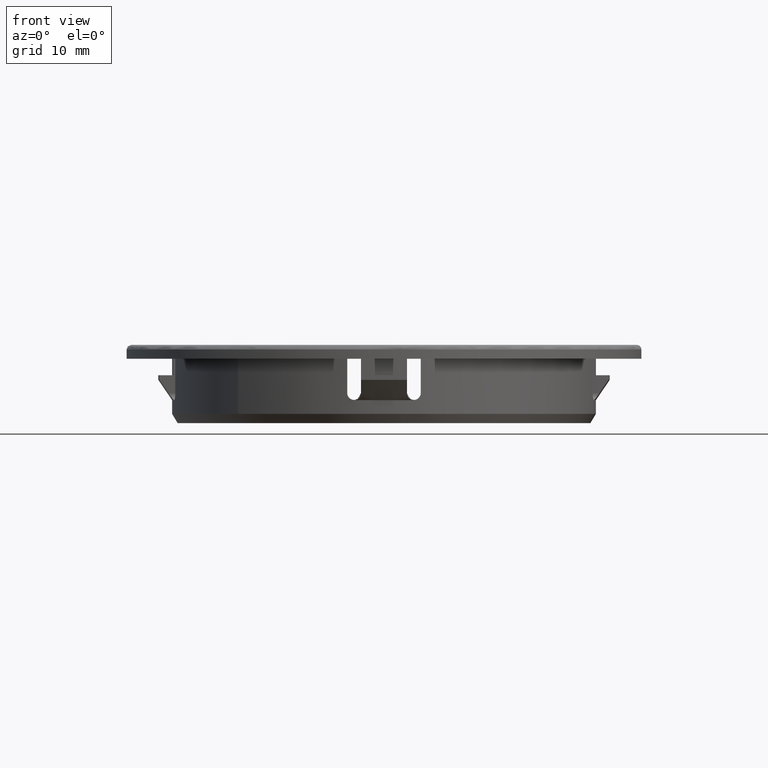
[diagram: clean part render]
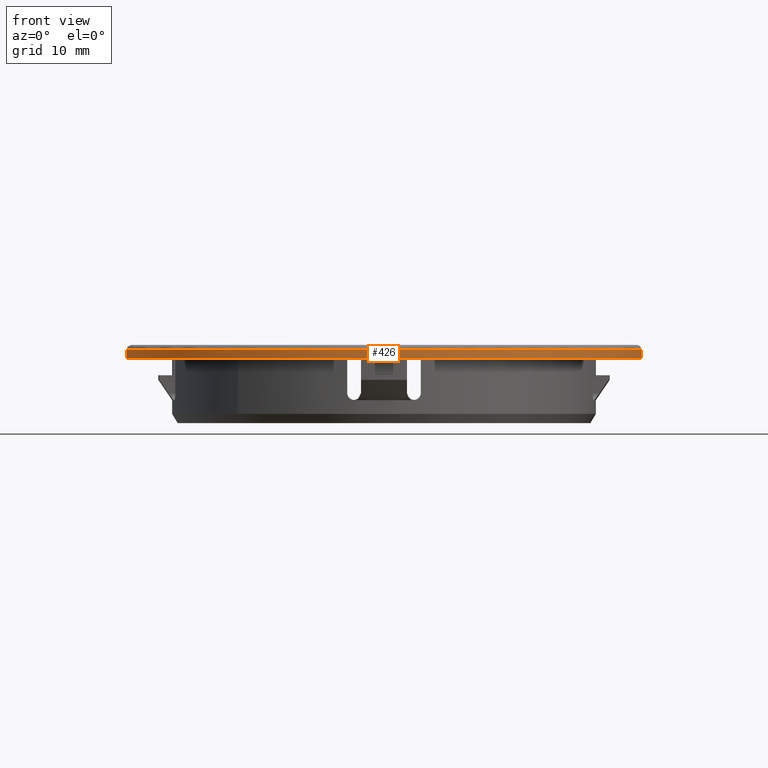
[diagram: same view with one face highlighted and labeled with its STEP entity id]
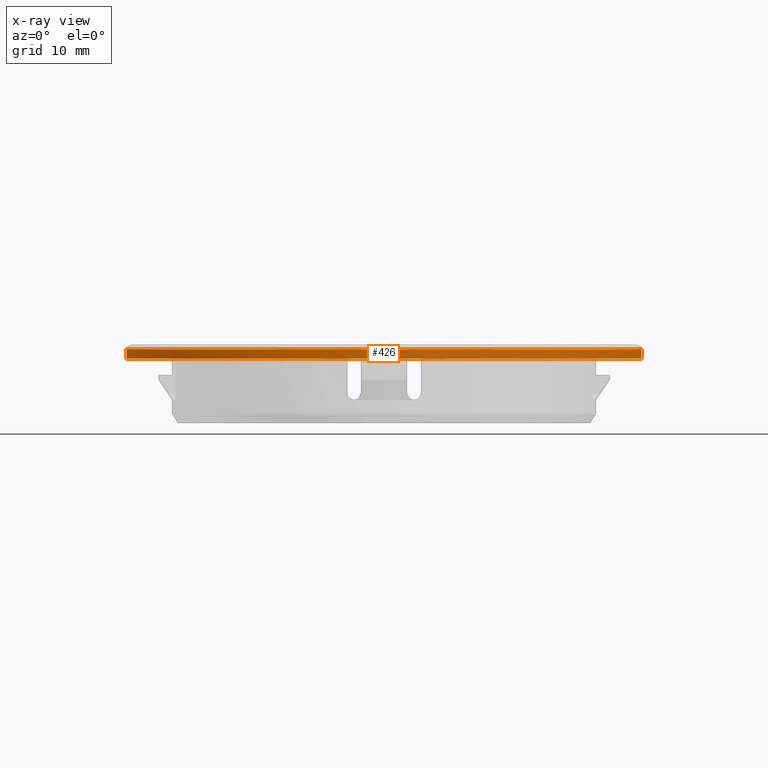
[diagram: x-ray of the same camera — body ghosted, the highlighted face saturated]
A machine part, front view. The second image highlights one B-rep face of the part: STEP entity #426.
The next image is the same camera in x-ray: the body ghosted, the highlighted face saturated — about 0% of this face is hidden behind the body in this view.
In plain terms, the highlighted face is a freeform B-spline surface patch.
Its self-contained STEP definition (entity closure, byte-faithful):
#260=CARTESIAN_POINT('',(15.983526509727337,22.989712488694661,8.025000000032868));
#261=CARTESIAN_POINT('',(26.873097911632620,15.418771648633529,8.025000000032868));
#262=CARTESIAN_POINT('',(27.913685344527579,2.196854680379640,8.025000000032868));
#263=CARTESIAN_POINT('',(30.110540024907216,-25.716830664147931,8.025000000032868));
#264=CARTESIAN_POINT('',(2.196854680379640,-27.913685344527579,8.025000000032868));
#265=CARTESIAN_POINT('',(-25.716830664147931,-30.110540024907216,8.025000000032868));
#266=CARTESIAN_POINT('',(-27.913685344527579,-2.196854680379640,8.025000000032868));
#267=CARTESIAN_POINT('',(-30.110540024907216,25.716830664147931,8.025000000032868));
#268=CARTESIAN_POINT('',(-2.196854680379640,27.913685344527579,8.025000000032868));
#269=CARTESIAN_POINT('',(15.983526509727337,22.989712488694661,6.974374999999178));
#270=CARTESIAN_POINT('',(26.873097911632620,15.418771648633529,6.974374999999178));
#271=CARTESIAN_POINT('',(27.913685344527579,2.196854680379640,6.974374999999178));
#272=CARTESIAN_POINT('',(30.110540024907216,-25.716830664147931,6.974374999999178));
#273=CARTESIAN_POINT('',(2.196854680379640,-27.913685344527579,6.974374999999178));
#274=CARTESIAN_POINT('',(-25.716830664147931,-30.110540024907216,6.974374999999178));
#275=CARTESIAN_POINT('',(-27.913685344527579,-2.196854680379640,6.974374999999178));
#276=CARTESIAN_POINT('',(-30.110540024907216,25.716830664147931,6.974374999999178));
#277=CARTESIAN_POINT('',(-2.196854680379640,27.913685344527579,6.974374999999178));
#285=(BOUNDED_SURFACE()B_SPLINE_SURFACE(2,1,((#260,#269),(#261,#270),(#262,#271),(#263,#272),(#264,#273),(#265,#274),(#266,#275),(#267,#276),(#268,#277)),.UNSPECIFIED.,.F.,.F.,.U.)B_SPLINE_SURFACE_WITH_KNOTS((3,2,2,2,3),(2,2),(0.0,25.979474632040521,72.371393617827152,118.763312603613800,165.155231589400390),(0.0,1.0),.UNSPECIFIED.)GEOMETRIC_REPRESENTATION_ITEM()RATIONAL_B_SPLINE_SURFACE(((0.855662221768731,0.855662221768731),(0.835979797464467,0.835979797464467),(1.0,1.0),(0.707106781186548,0.707106781186548),(1.0,1.0),(0.707106781186548,0.707106781186548),(1.0,1.0),(0.707106781186548,0.707106781186548),(1.0,1.0)))REPRESENTATION_ITEM('')SURFACE());
#286=CARTESIAN_POINT('',(15.983521644279421,22.989715871379481,8.000000000004722));
#287=VERTEX_POINT('',#286);
#288=CARTESIAN_POINT('',(27.997789237706669,0.351849116747990,8.000000000027695));
#289=VERTEX_POINT('',#288);
#290=CARTESIAN_POINT('',(15.983521644279415,22.989715871379481,8.000000000004722));
#291=CARTESIAN_POINT('',(27.816687008981184,14.762747961671874,8.000000000013259));
#292=CARTESIAN_POINT('',(27.997789237706669,0.351849116747990,8.000000000027695));
#300=(BOUNDED_CURVE()B_SPLINE_CURVE(2,(#290,#291,#292),.UNSPECIFIED.,.F.,.U.)B_SPLINE_CURVE_WITH_KNOTS((3,3),(0.348090576751430,0.497784295921551),.UNSPECIFIED.)CURVE()GEOMETRIC_REPRESENTATION_ITEM()RATIONAL_B_SPLINE_CURVE((0.860340237837286,0.822585864731215,0.994854295643604))REPRESENTATION_ITEM(''));
#301=EDGE_CURVE('',#287,#289,#300,.T.);
#302=ORIENTED_EDGE('',*,*,#301,.T.);
#303=CARTESIAN_POINT('',(28.0,0.0,8.0));
#304=VERTEX_POINT('',#303);
#305=CARTESIAN_POINT('',(27.997789237706666,0.351849116747990,8.000000000027695));
#306=CARTESIAN_POINT('',(28.000000000000004,0.175931503787042,8.0));
#307=CARTESIAN_POINT('',(28.0,0.0,8.0));
#315=(BOUNDED_CURVE()B_SPLINE_CURVE(2,(#305,#306,#307),.UNSPECIFIED.,.F.,.U.)B_SPLINE_CURVE_WITH_KNOTS((3,3),(0.497784295921551,0.500000000000000),.UNSPECIFIED.)CURVE()GEOMETRIC_REPRESENTATION_ITEM()RATIONAL_B_SPLINE_CURVE((0.994854295643604,0.997404141202100,1.0))REPRESENTATION_ITEM(''));
#316=EDGE_CURVE('',#289,#304,#315,.T.);
#317=ORIENTED_EDGE('',*,*,#316,.T.);
#318=CARTESIAN_POINT('',(1.952531044116802,-27.931838867531798,8.000000000032067));
#319=VERTEX_POINT('',#318);
#320=CARTESIAN_POINT('',(28.0,0.0,8.0));
#321=CARTESIAN_POINT('',(27.999999999999993,-26.111031723457124,8.0));
#322=CARTESIAN_POINT('',(1.952531044116802,-27.931838867531791,8.000000000032067));
#330=(BOUNDED_CURVE()B_SPLINE_CURVE(2,(#320,#321,#322),.UNSPECIFIED.,.F.,.U.)B_SPLINE_CURVE_WITH_KNOTS((3,3),(0.500000000000000,0.737833686535081),.UNSPECIFIED.)CURVE()GEOMETRIC_REPRESENTATION_ITEM()RATIONAL_B_SPLINE_CURVE((1.0,0.721360504033882,0.972879876386952))REPRESENTATION_ITEM(''));
#331=EDGE_CURVE('',#304,#319,#330,.T.);
#332=ORIENTED_EDGE('',*,*,#331,.T.);
#333=CARTESIAN_POINT('',(-28.0,0.0,8.0));
#334=VERTEX_POINT('',#333);
#335=CARTESIAN_POINT('',(1.952531044116802,-27.931838867531798,8.000000000032069));
#336=CARTESIAN_POINT('',(0.977455244496375,-27.999999999999993,8.0));
#337=CARTESIAN_POINT('',(0.0,-28.0,8.0));
#338=CARTESIAN_POINT('',(-28.000000000000004,-28.000000000000004,8.0));
#339=CARTESIAN_POINT('',(-28.0,0.0,8.0));
#347=(BOUNDED_CURVE()B_SPLINE_CURVE(2,(#335,#336,#337,#338,#339),.UNSPECIFIED.,.F.,.U.)B_SPLINE_CURVE_WITH_KNOTS((3,2,3),(0.737833686535080,0.750000000000000,1.0),.UNSPECIFIED.)CURVE()GEOMETRIC_REPRESENTATION_ITEM()RATIONAL_B_SPLINE_CURVE((0.972879876386951,0.985746277152665,1.0,0.707106781186547,1.0))REPRESENTATION_ITEM(''));
#348=EDGE_CURVE('',#319,#334,#347,.T.);
#349=ORIENTED_EDGE('',*,*,#348,.T.);
#350=CARTESIAN_POINT('',(-2.196838447002865,27.913686622112539,7.999999999999140));
#351=VERTEX_POINT('',#350);
#352=CARTESIAN_POINT('',(-28.0,0.0,8.0));
#353=CARTESIAN_POINT('',(-28.0,25.882948865358731,8.0));
#354=CARTESIAN_POINT('',(-2.196838447002865,27.913686622112543,7.999999999999140));
#362=(BOUNDED_CURVE()B_SPLINE_CURVE(2,(#352,#353,#354),.UNSPECIFIED.,.F.,.U.)B_SPLINE_CURVE_WITH_KNOTS((3,3),(0.0,0.236331400325748),.UNSPECIFIED.)CURVE()GEOMETRIC_REPRESENTATION_ITEM()RATIONAL_B_SPLINE_CURVE((1.0,0.723120541807604,0.969723564223555))REPRESENTATION_ITEM(''));
#363=EDGE_CURVE('',#334,#351,#362,.T.);
#364=ORIENTED_EDGE('',*,*,#363,.T.);
#365=CARTESIAN_POINT('',(-2.196838642496592,27.913686606727079,7.0));
#366=VERTEX_POINT('',#365);
#367=CARTESIAN_POINT('',(-2.196838447002865,27.913686622112539,7.999999999999140));
#368=CARTESIAN_POINT('',(-2.196838642496592,27.913686606727079,7.0));
#369=QUASI_UNIFORM_CURVE('',1,(#367,#368),.UNSPECIFIED.,.F.,.U.);
#370=EDGE_CURVE('',#351,#366,#369,.T.);
#371=ORIENTED_EDGE('',*,*,#370,.T.);
#372=CARTESIAN_POINT('',(-28.0,0.0,7.0));
#373=VERTEX_POINT('',#372);
#374=CARTESIAN_POINT('',(-28.0,0.0,7.0));
#375=CARTESIAN_POINT('',(-27.999999999999996,25.882948683526781,6.999999999999998));
#376=CARTESIAN_POINT('',(-2.196838642496591,27.913686606727079,7.0));
#384=(BOUNDED_CURVE()B_SPLINE_CURVE(2,(#374,#375,#376),.UNSPECIFIED.,.F.,.U.)B_SPLINE_CURVE_WITH_KNOTS((3,3),(0.0,0.236331399125175),.UNSPECIFIED.)CURVE()GEOMETRIC_REPRESENTATION_ITEM()RATIONAL_B_SPLINE_CURVE((1.0,0.723120543214163,0.969723561718049))REPRESENTATION_ITEM(''));
#385=EDGE_CURVE('',#373,#366,#384,.T.);
#386=ORIENTED_EDGE('',*,*,#385,.F.);
#387=CARTESIAN_POINT('',(28.0,0.0,7.0));
#388=VERTEX_POINT('',#387);
#389=CARTESIAN_POINT('',(28.0,0.0,7.0));
#390=CARTESIAN_POINT('',(28.000000000000004,-28.000000000000004,6.999999999999999));
#391=CARTESIAN_POINT('',(0.0,-28.0,7.0));
#392=CARTESIAN_POINT('',(-28.000000000000004,-28.000000000000004,6.999999999999999));
#393=CARTESIAN_POINT('',(-28.0,0.0,7.0));
#401=(BOUNDED_CURVE()B_SPLINE_CURVE(2,(#389,#390,#391,#392,#393),.UNSPECIFIED.,.F.,.U.)B_SPLINE_CURVE_WITH_KNOTS((3,2,3),(0.500000000000000,0.750000000000000,1.0),.UNSPECIFIED.)CURVE()GEOMETRIC_REPRESENTATION_ITEM()RATIONAL_B_SPLINE_CURVE((1.0,0.707106781186547,1.0,0.707106781186547,1.0))REPRESENTATION_ITEM(''));
#402=EDGE_CURVE('',#388,#373,#401,.T.);
#403=ORIENTED_EDGE('',*,*,#402,.F.);
#404=CARTESIAN_POINT('',(15.983521686752010,22.989715841851840,7.0));
#405=VERTEX_POINT('',#404);
#406=CARTESIAN_POINT('',(15.983521686752002,22.989715841851840,7.000000000000001));
#407=CARTESIAN_POINT('',(28.0,14.635300196203909,7.0));
#408=CARTESIAN_POINT('',(28.0,0.0,7.0));
#416=(BOUNDED_CURVE()B_SPLINE_CURVE(2,(#406,#407,#408),.UNSPECIFIED.,.F.,.U.)B_SPLINE_CURVE_WITH_KNOTS((3,3),(0.348090577032411,0.500000000000000),.UNSPECIFIED.)CURVE()GEOMETRIC_REPRESENTATION_ITEM()RATIONAL_B_SPLINE_CURVE((0.860340237695553,0.822027040555715,1.0))REPRESENTATION_ITEM(''));
#417=EDGE_CURVE('',#405,#388,#416,.T.);
#418=ORIENTED_EDGE('',*,*,#417,.F.);
#419=CARTESIAN_POINT('',(15.983521644279421,22.989715871379481,8.000000000004722));
#420=CARTESIAN_POINT('',(15.983521686752010,22.989715841851840,7.0));
#421=QUASI_UNIFORM_CURVE('',1,(#419,#420),.UNSPECIFIED.,.F.,.U.);
#422=EDGE_CURVE('',#287,#405,#421,.T.);
#423=ORIENTED_EDGE('',*,*,#422,.F.);
#424=EDGE_LOOP('',(#302,#317,#332,#349,#364,#371,#386,#403,#418,#423));
#425=FACE_OUTER_BOUND('',#424,.T.);
#426=ADVANCED_FACE('',(#425),#285,.T.);